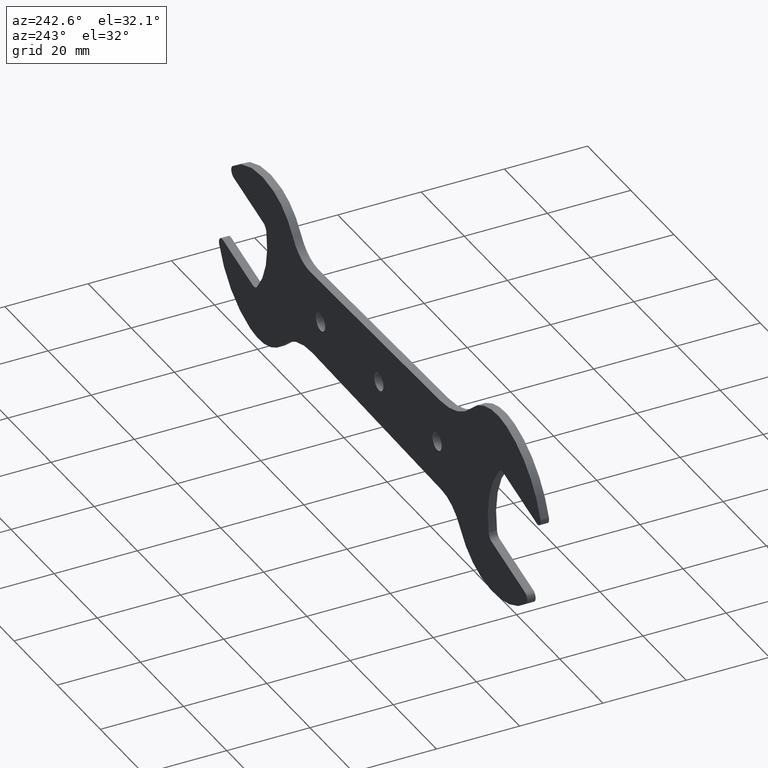
[diagram: clean part render]
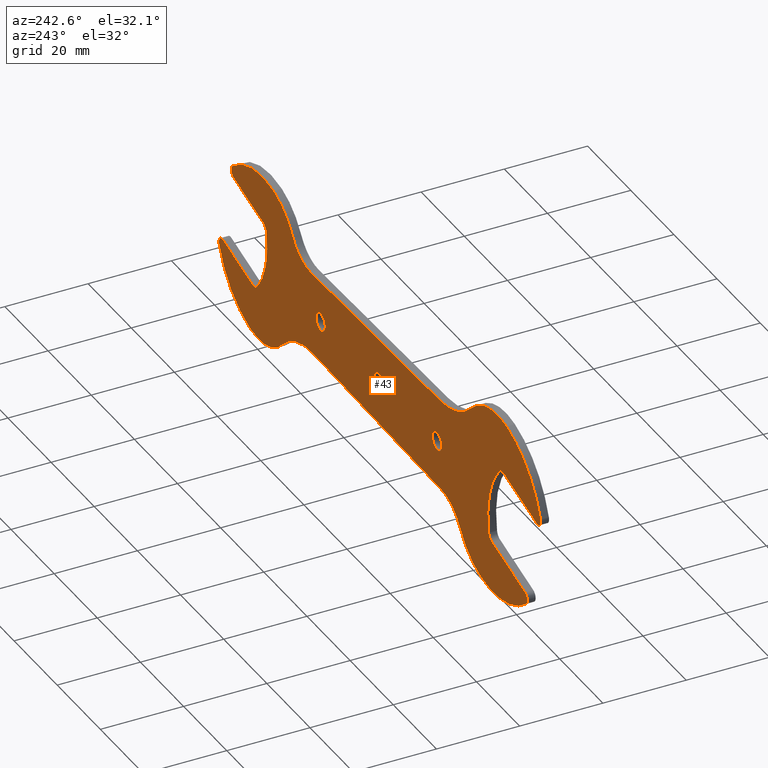
[diagram: same view with one face highlighted and labeled with its STEP entity id]
A machine part, auxiliary view. The second image highlights one B-rep face of the part: STEP entity #43.
In plain terms, the highlighted planar face has unit normal (-0, 1, 0).
Its self-contained STEP definition (entity closure, byte-faithful):
#43=ADVANCED_FACE('',(#107,#108,#109,#110),#106,.T.);
#106=PLANE('',#460);
#107=FACE_OUTER_BOUND('',#461,.T.);
#108=FACE_BOUND('',#462,.T.);
#109=FACE_BOUND('',#463,.T.);
#110=FACE_BOUND('',#464,.T.);
#457=CARTESIAN_POINT('',(-8.52579985120E+01,2.00000000000E+00,-3.09294073245E+01));
#458=DIRECTION('',(-0.00000000000E+00,1.00000000000E+00,0.00000000000E+00));
#459=DIRECTION('',(0.00000000000E+00,0.00000000000E+00,1.00000000000E+00));
#460=AXIS2_PLACEMENT_3D('',#457,#458,#459);
#461=EDGE_LOOP('',(#640,#641,#642,#643,#644,#645,#646,#647,#648,#649,#650,#651,#652,#653,#654,#655,#656,#657,#658,#659,#660,#661,#662,#663,#664,#665,#666,#667));
#462=EDGE_LOOP('',(#668,#669));
#463=EDGE_LOOP('',(#670,#671));
#464=EDGE_LOOP('',(#672,#673));
#640=ORIENTED_EDGE('',*,*,#838,.T.);
#641=ORIENTED_EDGE('',*,*,#841,.T.);
#642=ORIENTED_EDGE('',*,*,#842,.F.);
#643=ORIENTED_EDGE('',*,*,#843,.F.);
#644=ORIENTED_EDGE('',*,*,#844,.F.);
#645=ORIENTED_EDGE('',*,*,#845,.T.);
#646=ORIENTED_EDGE('',*,*,#846,.T.);
#647=ORIENTED_EDGE('',*,*,#847,.T.);
#648=ORIENTED_EDGE('',*,*,#848,.F.);
#649=ORIENTED_EDGE('',*,*,#849,.F.);
#650=ORIENTED_EDGE('',*,*,#850,.F.);
#651=ORIENTED_EDGE('',*,*,#851,.T.);
#652=ORIENTED_EDGE('',*,*,#852,.T.);
#653=ORIENTED_EDGE('',*,*,#853,.T.);
#654=ORIENTED_EDGE('',*,*,#854,.T.);
#655=ORIENTED_EDGE('',*,*,#855,.T.);
#656=ORIENTED_EDGE('',*,*,#856,.F.);
#657=ORIENTED_EDGE('',*,*,#857,.F.);
#658=ORIENTED_EDGE('',*,*,#858,.F.);
#659=ORIENTED_EDGE('',*,*,#859,.T.);
#660=ORIENTED_EDGE('',*,*,#860,.T.);
#661=ORIENTED_EDGE('',*,*,#861,.T.);
#662=ORIENTED_EDGE('',*,*,#862,.F.);
#663=ORIENTED_EDGE('',*,*,#863,.F.);
#664=ORIENTED_EDGE('',*,*,#864,.F.);
#665=ORIENTED_EDGE('',*,*,#865,.T.);
#666=ORIENTED_EDGE('',*,*,#866,.T.);
#667=ORIENTED_EDGE('',*,*,#834,.T.);
#668=ORIENTED_EDGE('',*,*,#867,.T.);
#669=ORIENTED_EDGE('',*,*,#868,.T.);
#670=ORIENTED_EDGE('',*,*,#869,.T.);
#671=ORIENTED_EDGE('',*,*,#870,.T.);
#672=ORIENTED_EDGE('',*,*,#871,.T.);
#673=ORIENTED_EDGE('',*,*,#872,.T.);
#834=EDGE_CURVE('',#949,#942,#950,.T.);
#838=EDGE_CURVE('',#942,#969,#976,.T.);
#841=EDGE_CURVE('',#969,#989,#996,.T.);
#842=EDGE_CURVE('',#1002,#989,#1003,.T.);
#843=EDGE_CURVE('',#1009,#1002,#1010,.T.);
#844=EDGE_CURVE('',#1016,#1009,#1017,.T.);
#845=EDGE_CURVE('',#1016,#1023,#1024,.T.);
#846=EDGE_CURVE('',#1023,#1030,#1031,.T.);
#847=EDGE_CURVE('',#1030,#1037,#1038,.T.);
#848=EDGE_CURVE('',#1044,#1037,#1045,.T.);
#849=EDGE_CURVE('',#1051,#1044,#1052,.T.);
#850=EDGE_CURVE('',#1058,#1051,#1059,.T.);
#851=EDGE_CURVE('',#1058,#1065,#1066,.T.);
#852=EDGE_CURVE('',#1065,#1072,#1073,.T.);
#853=EDGE_CURVE('',#1072,#1079,#1080,.T.);
#854=EDGE_CURVE('',#1079,#1086,#1087,.T.);
#855=EDGE_CURVE('',#1086,#1093,#1094,.T.);
#856=EDGE_CURVE('',#1100,#1093,#1101,.T.);
#857=EDGE_CURVE('',#1107,#1100,#1108,.T.);
#858=EDGE_CURVE('',#1114,#1107,#1115,.T.);
#859=EDGE_CURVE('',#1114,#1121,#1122,.T.);
#860=EDGE_CURVE('',#1121,#1128,#1129,.T.);
#861=EDGE_CURVE('',#1128,#1135,#1136,.T.);
#862=EDGE_CURVE('',#1142,#1135,#1143,.T.);
#863=EDGE_CURVE('',#1149,#1142,#1150,.T.);
#864=EDGE_CURVE('',#1156,#1149,#1157,.T.);
#865=EDGE_CURVE('',#1156,#1163,#1164,.T.);
#866=EDGE_CURVE('',#1163,#949,#1170,.T.);
#867=EDGE_CURVE('',#1176,#1177,#1178,.T.);
#868=EDGE_CURVE('',#1177,#1176,#1184,.T.);
#869=EDGE_CURVE('',#1190,#1191,#1192,.T.);
#870=EDGE_CURVE('',#1191,#1190,#1198,.T.);
#871=EDGE_CURVE('',#1204,#1205,#1206,.T.);
#872=EDGE_CURVE('',#1205,#1204,#1212,.T.);
#942=VERTEX_POINT('',#1620);
#949=VERTEX_POINT('',#1624);
#950=CIRCLE('',#1628,2.10000000000E+01);
#969=VERTEX_POINT('',#1637);
#976=CIRCLE('',#1644,2.00000000000E+00);
#989=VERTEX_POINT('',#1649);
#996=LINE('',#1653,#1654);
#1002=VERTEX_POINT('',#1656);
#1003=CIRCLE('',#1660,1.50000000000E+00);
#1009=VERTEX_POINT('',#1661);
#1010=CIRCLE('',#1665,2.30000000000E+01);
#1016=VERTEX_POINT('',#1666);
#1017=CIRCLE('',#1670,1.67000000000E+01);
#1023=VERTEX_POINT('',#1671);
#1024=CIRCLE('',#1675,2.10000000000E+01);
#1030=VERTEX_POINT('',#1676);
#1031=LINE('',#1677,#1678);
#1037=VERTEX_POINT('',#1680);
#1038=CIRCLE('',#1684,9.50000000000E+00);
#1044=VERTEX_POINT('',#1685);
#1045=CIRCLE('',#1689,1.52999912539E+01);
#1051=VERTEX_POINT('',#1690);
#1052=CIRCLE('',#1694,2.09999405716E+01);
#1058=VERTEX_POINT('',#1695);
#1059=CIRCLE('',#1699,1.50000000000E+00);
#1065=VERTEX_POINT('',#1700);
#1066=LINE('',#1701,#1702);
#1072=VERTEX_POINT('',#1704);
#1073=CIRCLE('',#1708,2.00000000000E+00);
#1079=VERTEX_POINT('',#1709);
#1080=CIRCLE('',#1713,1.90000000000E+01);
#1086=VERTEX_POINT('',#1714);
#1087=CIRCLE('',#1718,2.00000000000E+00);
#1093=VERTEX_POINT('',#1719);
#1094=LINE('',#1720,#1721);
#1100=VERTEX_POINT('',#1723);
#1101=CIRCLE('',#1727,1.50000000000E+00);
#1107=VERTEX_POINT('',#1728);
#1108=CIRCLE('',#1732,2.10000000000E+01);
#1114=VERTEX_POINT('',#1733);
#1115=CIRCLE('',#1737,1.53000000000E+01);
#1121=VERTEX_POINT('',#1738);
#1122=CIRCLE('',#1742,1.90000000000E+01);
#1128=VERTEX_POINT('',#1743);
#1129=LINE('',#1744,#1745);
#1135=VERTEX_POINT('',#1747);
#1136=CIRCLE('',#1751,1.05000000000E+01);
#1142=VERTEX_POINT('',#1752);
#1143=CIRCLE('',#1756,1.67000000000E+01);
#1149=VERTEX_POINT('',#1757);
#1150=CIRCLE('',#1761,2.30000000000E+01);
#1156=VERTEX_POINT('',#1762);
#1157=CIRCLE('',#1766,1.50000000000E+00);
#1163=VERTEX_POINT('',#1767);
#1164=LINE('',#1768,#1769);
#1170=CIRCLE('',#1774,2.00000000000E+00);
#1176=VERTEX_POINT('',#1775);
#1177=VERTEX_POINT('',#1776);
#1178=CIRCLE('',#1780,2.15000000000E+00);
#1184=CIRCLE('',#1784,2.15000000000E+00);
#1190=VERTEX_POINT('',#1785);
#1191=VERTEX_POINT('',#1786);
#1192=CIRCLE('',#1790,2.15000000000E+00);
#1198=CIRCLE('',#1794,2.15000000000E+00);
#1204=VERTEX_POINT('',#1795);
#1205=VERTEX_POINT('',#1796);
#1206=CIRCLE('',#1800,2.15000000000E+00);
#1212=CIRCLE('',#1804,2.15000000000E+00);
#1620=CARTESIAN_POINT('',(-5.58148508249E+01,2.00000000000E+00,8.54658872338E+00));
#1624=CARTESIAN_POINT('',(-5.09231709253E+01,2.00000000000E+00,-9.70941084283E+00));
#1625=CARTESIAN_POINT('',(-7.14835968893E+01,2.00000000000E+00,-5.43519931572E+00));
#1626=DIRECTION('',(0.00000000000E+00,-1.00000000000E+00,0.00000000000E+00));
#1627=DIRECTION('',(-0.00000000000E+00,-0.00000000000E+00,-1.00000000000E+00));
#1628=AXIS2_PLACEMENT_3D('',#1625,#1626,#1627);
#1637=CARTESIAN_POINT('',(-5.78247502838E+01,2.00000000000E+00,9.14684155830E+00));
#1641=CARTESIAN_POINT('',(-5.73071123548E+01,2.00000000000E+00,7.21498986252E+00));
#1642=DIRECTION('',(0.00000000000E+00,-1.00000000000E+00,0.00000000000E+00));
#1643=DIRECTION('',(-0.00000000000E+00,-0.00000000000E+00,-1.00000000000E+00));
#1644=AXIS2_PLACEMENT_3D('',#1641,#1642,#1643);
#1649=CARTESIAN_POINT('',(-7.31572476037E+01,2.00000000000E+00,5.03851265519E+00));
#1653=CARTESIAN_POINT('',(-5.78247502838E+01,2.00000000000E+00,9.14684155830E+00));
#1654=VECTOR('',#1655,1.58733689065E+01);
#1655=DIRECTION('',(-9.65925847893E-01,0.00000000000E+00,-2.58818964475E-01));
#1656=CARTESIAN_POINT('',(-7.49630023840E+01,2.00000000000E+00,6.97793082855E+00));
#1657=CARTESIAN_POINT('',(-7.35454760504E+01,2.00000000000E+00,6.48740142703E+00));
#1658=DIRECTION('',(0.00000000000E+00,-1.00000000000E+00,-0.00000000000E+00));
#1659=DIRECTION('',(2.58818964475E-01,0.00000000000E+00,-9.65925847893E-01));
#1660=AXIS2_PLACEMENT_3D('',#1657,#1658,#1659);
#1661=CARTESIAN_POINT('',(-5.91804366406E+01,2.00000000000E+00,2.16727740099E+01));
#1662=CARTESIAN_POINT('',(-5.32275986032E+01,2.00000000000E+00,-5.43519994716E-01));
#1663=DIRECTION('',(0.00000000000E+00,-1.00000000000E+00,0.00000000000E+00));
#1664=DIRECTION('',(-0.00000000000E+00,-0.00000000000E+00,-1.00000000000E+00));
#1665=AXIS2_PLACEMENT_3D('',#1662,#1663,#1664);
#1666=CARTESIAN_POINT('',(-4.29868516019E+01,2.00000000000E+00,1.72875378755E+01));
#1667=CARTESIAN_POINT('',(-5.48581584182E+01,2.00000000000E+00,5.54181207947E+00));
#1668=DIRECTION('',(0.00000000000E+00,-1.00000000000E+00,0.00000000000E+00));
#1669=DIRECTION('',(-0.00000000000E+00,-0.00000000000E+00,-1.00000000000E+00));
#1670=AXIS2_PLACEMENT_3D('',#1667,#1668,#1669);
#1671=CARTESIAN_POINT('',(-2.84643007519E+01,2.00000000000E+00,1.10615264373E+01));
#1672=CARTESIAN_POINT('',(-2.80588609947E+01,2.00000000000E+00,3.20576122298E+01));
#1673=DIRECTION('',(0.00000000000E+00,-1.00000000000E+00,0.00000000000E+00));
#1674=DIRECTION('',(-0.00000000000E+00,-0.00000000000E+00,-1.00000000000E+00));
#1675=AXIS2_PLACEMENT_3D('',#1672,#1673,#1674);
#1676=CARTESIAN_POINT('',(3.17094296317E+01,2.00000000000E+00,9.89955639787E+00));
#1677=CARTESIAN_POINT('',(-2.84643007519E+01,2.00000000000E+00,1.10615264373E+01));
#1678=VECTOR('',#1679,6.01849483065E+01);
#1679=DIRECTION('',(9.99813609164E-01,0.00000000000E+00,-1.93066551048E-02));
#1680=CARTESIAN_POINT('',(3.98866303135E+01,2.00000000000E+00,1.42646227154E+01));
#1681=CARTESIAN_POINT('',(3.18928428552E+01,2.00000000000E+00,1.93977856849E+01));
#1682=DIRECTION('',(0.00000000000E+00,-1.00000000000E+00,-0.00000000000E+00));
#1683=DIRECTION('',(8.41451311399E-01,0.00000000000E+00,-5.40332944161E-01));
#1684=AXIS2_PLACEMENT_3D('',#1681,#1682,#1683);
#1685=CARTESIAN_POINT('',(4.88007957322E+01,2.00000000000E+00,2.07761624477E+01));
#1686=CARTESIAN_POINT('',(5.27608280185E+01,2.00000000000E+00,5.99753339554E+00));
#1687=DIRECTION('',(0.00000000000E+00,-1.00000000000E+00,0.00000000000E+00));
#1688=DIRECTION('',(-0.00000000000E+00,-0.00000000000E+00,-1.00000000000E+00));
#1689=AXIS2_PLACEMENT_3D('',#1686,#1687,#1688);
#1690=CARTESIAN_POINT('',(6.78694657598E+01,2.00000000000E+00,1.64645867506E+01));
#1691=CARTESIAN_POINT('',(5.42361220590E+01,2.00000000000E+00,4.91814807453E-01));
#1692=DIRECTION('',(0.00000000000E+00,-1.00000000000E+00,0.00000000000E+00));
#1693=DIRECTION('',(-0.00000000000E+00,-0.00000000000E+00,-1.00000000000E+00));
#1694=AXIS2_PLACEMENT_3D('',#1691,#1692,#1693);
#1695=CARTESIAN_POINT('',(6.72838812483E+01,2.00000000000E+00,1.38747824850E+01));
#1696=CARTESIAN_POINT('',(6.68956527396E+01,2.00000000000E+00,1.53236712403E+01));
#1697=DIRECTION('',(0.00000000000E+00,-1.00000000000E+00,0.00000000000E+00));
#1698=DIRECTION('',(-0.00000000000E+00,-0.00000000000E+00,-1.00000000000E+00));
#1699=AXIS2_PLACEMENT_3D('',#1696,#1697,#1698);
#1700=CARTESIAN_POINT('',(5.35692413070E+01,2.00000000000E+00,1.01999563872E+01));
#1701=CARTESIAN_POINT('',(6.72838812483E+01,2.00000000000E+00,1.38747824850E+01));
#1702=VECTOR('',#1703,1.41984398991E+01);
#1703=DIRECTION('',(-9.65925836834E-01,0.00000000000E+00,-2.58819005748E-01));
#1704=CARTESIAN_POINT('',(5.21261087122E+01,2.00000000000E+00,8.66228567357E+00));
#1705=CARTESIAN_POINT('',(5.40868793185E+01,2.00000000000E+00,8.26810471353E+00));
#1706=DIRECTION('',(0.00000000000E+00,-1.00000000000E+00,0.00000000000E+00));
#1707=DIRECTION('',(-0.00000000000E+00,-0.00000000000E+00,-1.00000000000E+00));
#1708=AXIS2_PLACEMENT_3D('',#1705,#1706,#1707);
#1709=CARTESIAN_POINT('',(5.64940682758E+01,2.00000000000E+00,-7.63912959919E+00));
#1710=CARTESIAN_POINT('',(7.07534294725E+01,2.00000000000E+00,4.91756655313E+00));
#1711=DIRECTION('',(0.00000000000E+00,-1.00000000000E+00,0.00000000000E+00));
#1712=DIRECTION('',(-0.00000000000E+00,-0.00000000000E+00,-1.00000000000E+00));
#1713=AXIS2_PLACEMENT_3D('',#1710,#1711,#1712);
#1714=CARTESIAN_POINT('',(5.85126918379E+01,2.00000000000E+00,-8.24922373987E+00));
#1715=CARTESIAN_POINT('',(5.79950536649E+01,2.00000000000E+00,-6.31737210947E+00));
#1716=DIRECTION('',(0.00000000000E+00,-1.00000000000E+00,-0.00000000000E+00));
#1717=DIRECTION('',(2.58819086484E-01,0.00000000000E+00,-9.65925815201E-01));
#1718=AXIS2_PLACEMENT_3D('',#1715,#1716,#1717);
#1719=CARTESIAN_POINT('',(7.22273209163E+01,2.00000000000E+00,-4.57439932410E+00));
#1720=CARTESIAN_POINT('',(5.85126918379E+01,2.00000000000E+00,-8.24922373987E+00));
#1721=VECTOR('',#1722,1.41984289710E+01);
#1722=DIRECTION('',(9.65925815201E-01,0.00000000000E+00,2.58819086484E-01));
#1723=CARTESIAN_POINT('',(7.40293534263E+01,2.00000000000E+00,-6.52444529556E+00));
#1724=CARTESIAN_POINT('',(7.26155495460E+01,2.00000000000E+00,-6.02328804690E+00));
#1725=DIRECTION('',(0.00000000000E+00,-1.00000000000E+00,0.00000000000E+00));
#1726=DIRECTION('',(-0.00000000000E+00,-0.00000000000E+00,-1.00000000000E+00));
#1727=AXIS2_PLACEMENT_3D('',#1724,#1725,#1726);
#1728=CARTESIAN_POINT('',(5.96712903664E+01,2.00000000000E+00,-1.97926884927E+01));
#1729=CARTESIAN_POINT('',(5.42360991013E+01,2.00000000000E+00,4.91756185695E-01));
#1730=DIRECTION('',(0.00000000000E+00,-1.00000000000E+00,0.00000000000E+00));
#1731=DIRECTION('',(-0.00000000000E+00,-0.00000000000E+00,-1.00000000000E+00));
#1732=AXIS2_PLACEMENT_3D('',#1729,#1730,#1731);
#1733=CARTESIAN_POINT('',(4.47373841532E+01,2.00000000000E+00,-1.56752471010E+01));
#1734=CARTESIAN_POINT('',(5.57113651327E+01,2.00000000000E+00,-5.01402102415E+00));
#1735=DIRECTION('',(0.00000000000E+00,-1.00000000000E+00,-0.00000000000E+00));
#1736=DIRECTION('',(2.58818631671E-01,0.00000000000E+00,-9.65925937068E-01));
#1737=AXIS2_PLACEMENT_3D('',#1734,#1735,#1736);
#1738=CARTESIAN_POINT('',(3.07427415672E+01,2.00000000000E+00,-9.91821953754E+00));
#1739=CARTESIAN_POINT('',(3.11095646362E+01,2.00000000000E+00,-2.89146781769E+01));
#1740=DIRECTION('',(0.00000000000E+00,-1.00000000000E+00,0.00000000000E+00));
#1741=DIRECTION('',(-0.00000000000E+00,-0.00000000000E+00,-1.00000000000E+00));
#1742=AXIS2_PLACEMENT_3D('',#1739,#1740,#1741);
#1743=CARTESIAN_POINT('',(-2.90717174274E+01,2.00000000000E+00,-1.10732413147E+01));
#1744=CARTESIAN_POINT('',(3.07427415672E+01,2.00000000000E+00,-9.91821953754E+00));
#1745=VECTOR('',#1746,5.98256097347E+01);
#1746=DIRECTION('',(-9.99813612597E-01,0.00000000000E+00,-1.93064773150E-02));
#1747=CARTESIAN_POINT('',(-3.76426909546E+01,2.00000000000E+00,-1.58030664305E+01));
#1748=CARTESIAN_POINT('',(-2.88689994156E+01,2.00000000000E+00,-2.15712842470E+01));
#1749=DIRECTION('',(0.00000000000E+00,-1.00000000000E+00,0.00000000000E+00));
#1750=DIRECTION('',(-0.00000000000E+00,-0.00000000000E+00,-1.00000000000E+00));
#1751=AXIS2_PLACEMENT_3D('',#1748,#1749,#1750);
#1752=CARTESIAN_POINT('',(-4.72747603967E+01,2.00000000000E+00,-2.27598146308E+01));
#1753=CARTESIAN_POINT('',(-5.15970384499E+01,2.00000000000E+00,-6.62885333177E+00));
#1754=DIRECTION('',(0.00000000000E+00,-1.00000000000E+00,0.00000000000E+00));
#1755=DIRECTION('',(-0.00000000000E+00,-0.00000000000E+00,-1.00000000000E+00));
#1756=AXIS2_PLACEMENT_3D('',#1753,#1754,#1755);
#1757=CARTESIAN_POINT('',(-6.82902890689E+01,2.00000000000E+00,-1.79249858688E+01));
#1758=CARTESIAN_POINT('',(-5.32275986032E+01,2.00000000000E+00,-5.43519994716E-01));
#1759=DIRECTION('',(0.00000000000E+00,-1.00000000000E+00,-0.00000000000E+00));
#1760=DIRECTION('',(2.58819045103E-01,0.00000000000E+00,-9.65925826289E-01));
#1761=AXIS2_PLACEMENT_3D('',#1758,#1759,#1760);
#1762=CARTESIAN_POINT('',(-6.76961680509E+01,2.00000000000E+00,-1.53425232125E+01));
#1763=CARTESIAN_POINT('',(-6.73079396907E+01,2.00000000000E+00,-1.67914120075E+01));
#1764=DIRECTION('',(0.00000000000E+00,-1.00000000000E+00,0.00000000000E+00));
#1765=DIRECTION('',(-0.00000000000E+00,-0.00000000000E+00,-1.00000000000E+00));
#1766=AXIS2_PLACEMENT_3D('',#1763,#1764,#1765);
#1767=CARTESIAN_POINT('',(-5.23636689178E+01,2.00000000000E+00,-1.12341948050E+01));
#1768=CARTESIAN_POINT('',(-6.76961680509E+01,2.00000000000E+00,-1.53425232125E+01));
#1769=VECTOR('',#1770,1.58733705296E+01);
#1770=DIRECTION('',(9.65925863352E-01,0.00000000000E+00,2.58818906782E-01));
#1771=CARTESIAN_POINT('',(-5.28813067313E+01,2.00000000000E+00,-9.30234307834E+00));
#1772=DIRECTION('',(0.00000000000E+00,-1.00000000000E+00,0.00000000000E+00));
#1773=DIRECTION('',(-0.00000000000E+00,-0.00000000000E+00,-1.00000000000E+00));
#1774=AXIS2_PLACEMENT_3D('',#1771,#1772,#1773);
#1775=CARTESIAN_POINT('',(0.00000000000E+00,2.00000000000E+00,2.15000000000E+00));
#1776=CARTESIAN_POINT('',(5.18104078158E-16,2.00000000000E+00,-2.15000000000E+00));
#1777=CARTESIAN_POINT('',(0.00000000000E+00,2.00000000000E+00,0.00000000000E+00));
#1778=DIRECTION('',(0.00000000000E+00,-1.00000000000E+00,0.00000000000E+00));
#1779=DIRECTION('',(-1.22460635382E-16,0.00000000000E+00,1.00000000000E+00));
#1780=AXIS2_PLACEMENT_3D('',#1777,#1778,#1779);
#1781=CARTESIAN_POINT('',(0.00000000000E+00,2.00000000000E+00,0.00000000000E+00));
#1782=DIRECTION('',(0.00000000000E+00,-1.00000000000E+00,0.00000000000E+00));
#1783=DIRECTION('',(-1.22460635382E-16,0.00000000000E+00,1.00000000000E+00));
#1784=AXIS2_PLACEMENT_3D('',#1781,#1782,#1783);
#1785=CARTESIAN_POINT('',(-2.69991599686E+01,2.00000000000E+00,2.15000000000E+00));
#1786=CARTESIAN_POINT('',(-2.69991599686E+01,2.00000000000E+00,-2.15000000000E+00));
#1787=CARTESIAN_POINT('',(-2.69991599686E+01,2.00000000000E+00,0.00000000000E+00));
#1788=DIRECTION('',(0.00000000000E+00,-1.00000000000E+00,0.00000000000E+00));
#1789=DIRECTION('',(-1.22460635382E-16,0.00000000000E+00,1.00000000000E+00));
#1790=AXIS2_PLACEMENT_3D('',#1787,#1788,#1789);
#1791=CARTESIAN_POINT('',(-2.69991599686E+01,2.00000000000E+00,0.00000000000E+00));
#1792=DIRECTION('',(0.00000000000E+00,-1.00000000000E+00,0.00000000000E+00));
#1793=DIRECTION('',(-1.22460635382E-16,0.00000000000E+00,1.00000000000E+00));
#1794=AXIS2_PLACEMENT_3D('',#1791,#1792,#1793);
#1795=CARTESIAN_POINT('',(2.70008400314E+01,2.00000000000E+00,2.15000000000E+00));
#1796=CARTESIAN_POINT('',(2.70008400314E+01,2.00000000000E+00,-2.15000000000E+00));
#1797=CARTESIAN_POINT('',(2.70008400314E+01,2.00000000000E+00,0.00000000000E+00));
#1798=DIRECTION('',(0.00000000000E+00,-1.00000000000E+00,0.00000000000E+00));
#1799=DIRECTION('',(-1.22460635382E-16,0.00000000000E+00,1.00000000000E+00));
#1800=AXIS2_PLACEMENT_3D('',#1797,#1798,#1799);
#1801=CARTESIAN_POINT('',(2.70008400314E+01,2.00000000000E+00,0.00000000000E+00));
#1802=DIRECTION('',(0.00000000000E+00,-1.00000000000E+00,0.00000000000E+00));
#1803=DIRECTION('',(-1.22460635382E-16,0.00000000000E+00,1.00000000000E+00));
#1804=AXIS2_PLACEMENT_3D('',#1801,#1802,#1803);